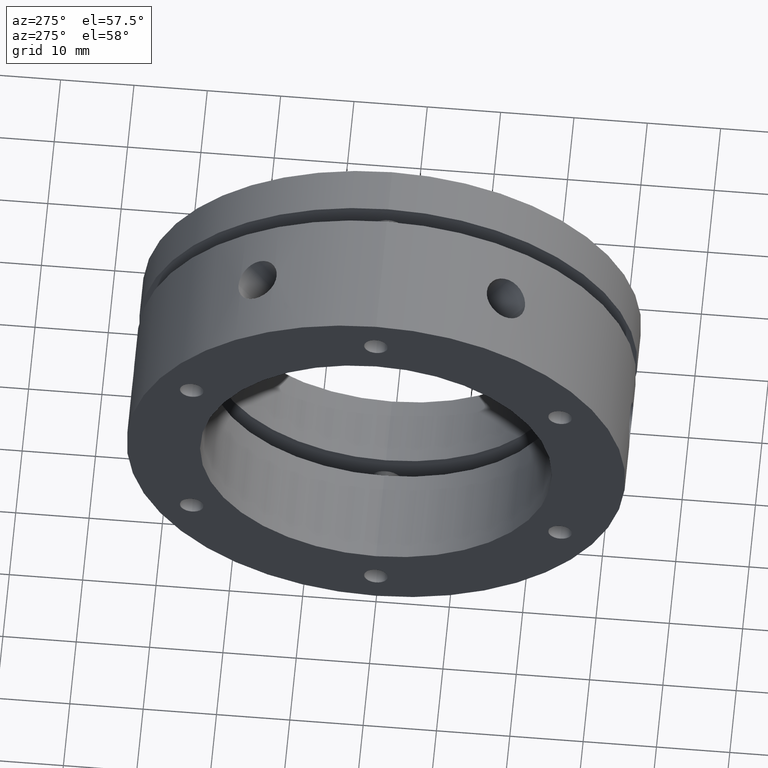
[diagram: clean part render]
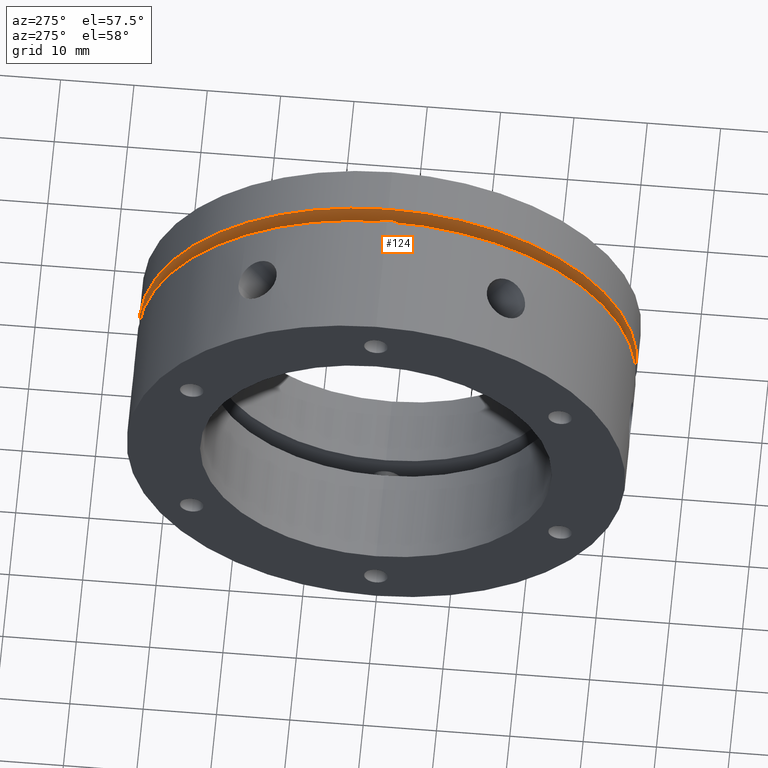
[diagram: same view with one face highlighted and labeled with its STEP entity id]
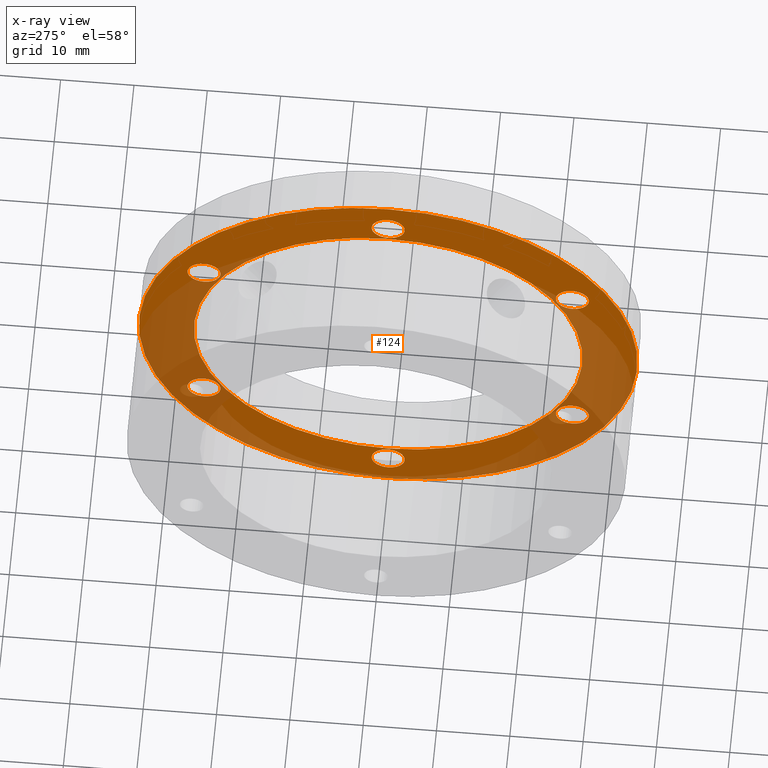
[diagram: x-ray of the same camera — body ghosted, the highlighted face saturated]
A machine part, auxiliary view. The second image highlights one B-rep face of the part: STEP entity #124.
The next image is the same camera in x-ray: the body ghosted, the highlighted face saturated — about 40% of this face is hidden behind the body in this view.
In plain terms, the highlighted planar face has unit normal (1, 0, 0).
Its self-contained STEP definition (entity closure, byte-faithful):
#124 = ADVANCED_FACE ( 'NONE', ( #2172, #2176, #2173, #2175, #2174, #2177, #2178, #2179 ), #446, .F. ) ;
#443 = DIRECTION ( 'NONE',  ( 1.000000000000000000, -0.0000000000000000000, 0.0000000000000000000 ) ) ;
#445 = CARTESIAN_POINT ( 'NONE',  ( 18.99999999999999600, 30.25000000000000400, 0.0000000000000000000 ) ) ;
#446 = PLANE ( 'NONE',  #2011 ) ;
#448 = DIRECTION ( 'NONE',  ( 0.0000000000000000000, 0.0000000000000000000, -1.000000000000000000 ) ) ;
#652 = CARTESIAN_POINT ( 'NONE',  ( 18.99999999999999600, 3.245314017740486900E-015, -26.50000000000000700 ) ) ;
#658 = CARTESIAN_POINT ( 'NONE',  ( 18.99999999999999600, 0.0000000000000000000, 26.50000000000000700 ) ) ;
#842 = ORIENTED_EDGE ( 'NONE', *, *, #1522, .F. ) ;
#843 = ORIENTED_EDGE ( 'NONE', *, *, #1565, .F. ) ;
#844 = ORIENTED_EDGE ( 'NONE', *, *, #1545, .F. ) ;
#845 = ORIENTED_EDGE ( 'NONE', *, *, #1556, .F. ) ;
#846 = ORIENTED_EDGE ( 'NONE', *, *, #2892, .F. ) ;
#847 = ORIENTED_EDGE ( 'NONE', *, *, #1555, .F. ) ;
#848 = ORIENTED_EDGE ( 'NONE', *, *, #2896, .F. ) ;
#849 = ORIENTED_EDGE ( 'NONE', *, *, #1450, .F. ) ;
#850 = ORIENTED_EDGE ( 'NONE', *, *, #2900, .F. ) ;
#851 = ORIENTED_EDGE ( 'NONE', *, *, #1449, .F. ) ;
#852 = ORIENTED_EDGE ( 'NONE', *, *, #2904, .F. ) ;
#853 = ORIENTED_EDGE ( 'NONE', *, *, #1448, .F. ) ;
#854 = ORIENTED_EDGE ( 'NONE', *, *, #2908, .F. ) ;
#856 = ORIENTED_EDGE ( 'NONE', *, *, #1447, .F. ) ;
#857 = ORIENTED_EDGE ( 'NONE', *, *, #2912, .F. ) ;
#859 = ORIENTED_EDGE ( 'NONE', *, *, #1446, .F. ) ;
#1218 = EDGE_LOOP ( 'NONE', ( #844, #845 ) ) ;
#1219 = EDGE_LOOP ( 'NONE', ( #850, #851 ) ) ;
#1220 = EDGE_LOOP ( 'NONE', ( #852, #853 ) ) ;
#1221 = EDGE_LOOP ( 'NONE', ( #842, #843 ) ) ;
#1222 = EDGE_LOOP ( 'NONE', ( #848, #849 ) ) ;
#1224 = EDGE_LOOP ( 'NONE', ( #846, #847 ) ) ;
#1225 = EDGE_LOOP ( 'NONE', ( #854, #856 ) ) ;
#1226 = EDGE_LOOP ( 'NONE', ( #857, #859 ) ) ;
#1344 = VERTEX_POINT ( 'NONE', #652 ) ;
#1350 = VERTEX_POINT ( 'NONE', #658 ) ;
#1446 = EDGE_CURVE ( 'NONE', #1661, #1658, #2388, .T. ) ;
#1447 = EDGE_CURVE ( 'NONE', #1657, #1654, #2390, .T. ) ;
#1448 = EDGE_CURVE ( 'NONE', #1653, #1650, #2389, .T. ) ;
#1449 = EDGE_CURVE ( 'NONE', #1649, #1646, #2391, .T. ) ;
#1450 = EDGE_CURVE ( 'NONE', #1645, #1642, #2392, .T. ) ;
#1522 = EDGE_CURVE ( 'NONE', #1350, #1344, #2495, .T. ) ;
#1545 = EDGE_CURVE ( 'NONE', #1634, #1635, #2530, .T. ) ;
#1555 = EDGE_CURVE ( 'NONE', #1641, #1638, #2542, .T. ) ;
#1556 = EDGE_CURVE ( 'NONE', #1635, #1634, #2545, .T. ) ;
#1565 = EDGE_CURVE ( 'NONE', #1344, #1350, #2555, .T. ) ;
#1634 = VERTEX_POINT ( 'NONE', #3616 ) ;
#1635 = VERTEX_POINT ( 'NONE', #3622 ) ;
#1638 = VERTEX_POINT ( 'NONE', #3593 ) ;
#1641 = VERTEX_POINT ( 'NONE', #3625 ) ;
#1642 = VERTEX_POINT ( 'NONE', #3626 ) ;
#1645 = VERTEX_POINT ( 'NONE', #3629 ) ;
#1646 = VERTEX_POINT ( 'NONE', #3630 ) ;
#1649 = VERTEX_POINT ( 'NONE', #3633 ) ;
#1650 = VERTEX_POINT ( 'NONE', #3634 ) ;
#1653 = VERTEX_POINT ( 'NONE', #3637 ) ;
#1654 = VERTEX_POINT ( 'NONE', #3638 ) ;
#1657 = VERTEX_POINT ( 'NONE', #3641 ) ;
#1658 = VERTEX_POINT ( 'NONE', #3642 ) ;
#1661 = VERTEX_POINT ( 'NONE', #3645 ) ;
#2011 = AXIS2_PLACEMENT_3D ( 'NONE', #445, #443, #448 ) ;
#2100 = AXIS2_PLACEMENT_3D ( 'NONE', #4370, #4371, #4372 ) ;
#2101 = AXIS2_PLACEMENT_3D ( 'NONE', #4373, #4374, #4375 ) ;
#2102 = AXIS2_PLACEMENT_3D ( 'NONE', #4376, #4377, #4378 ) ;
#2103 = AXIS2_PLACEMENT_3D ( 'NONE', #4379, #4380, #4381 ) ;
#2104 = AXIS2_PLACEMENT_3D ( 'NONE', #4384, #4385, #4386 ) ;
#2127 = AXIS2_PLACEMENT_3D ( 'NONE', #3243, #3244, #3245 ) ;
#2139 = AXIS2_PLACEMENT_3D ( 'NONE', #3299, #3300, #3301 ) ;
#2144 = AXIS2_PLACEMENT_3D ( 'NONE', #3322, #3323, #3324 ) ;
#2145 = AXIS2_PLACEMENT_3D ( 'NONE', #3325, #3326, #3327 ) ;
#2154 = AXIS2_PLACEMENT_3D ( 'NONE', #3352, #3353, #3354 ) ;
#2172 = FACE_BOUND ( 'NONE', #1221, .T. ) ;
#2173 = FACE_BOUND ( 'NONE', #1224, .T. ) ;
#2174 = FACE_BOUND ( 'NONE', #1219, .T. ) ;
#2175 = FACE_BOUND ( 'NONE', #1222, .T. ) ;
#2176 = FACE_BOUND ( 'NONE', #1218, .T. ) ;
#2177 = FACE_BOUND ( 'NONE', #1220, .T. ) ;
#2178 = FACE_BOUND ( 'NONE', #1225, .T. ) ;
#2179 = FACE_OUTER_BOUND ( 'NONE', #1226, .T. ) ;
#2388 = CIRCLE ( 'NONE', #2100, 34.00000000000000000 ) ;
#2389 = CIRCLE ( 'NONE', #2102, 2.250000000000000400 ) ;
#2390 = CIRCLE ( 'NONE', #2101, 2.250000000000000400 ) ;
#2391 = CIRCLE ( 'NONE', #2103, 2.250000000000001800 ) ;
#2392 = CIRCLE ( 'NONE', #2104, 2.249999999999998700 ) ;
#2495 = CIRCLE ( 'NONE', #2127, 26.50000000000000700 ) ;
#2530 = CIRCLE ( 'NONE', #2139, 2.249999999999998700 ) ;
#2542 = CIRCLE ( 'NONE', #2144, 2.250000000000000400 ) ;
#2545 = CIRCLE ( 'NONE', #2145, 2.249999999999998700 ) ;
#2555 = CIRCLE ( 'NONE', #2154, 26.50000000000000700 ) ;
#2645 = CIRCLE ( 'NONE', #4032, 2.250000000000000400 ) ;
#2647 = CIRCLE ( 'NONE', #4034, 2.249999999999998700 ) ;
#2653 = CIRCLE ( 'NONE', #4036, 2.250000000000001800 ) ;
#2659 = CIRCLE ( 'NONE', #4038, 2.250000000000000400 ) ;
#2665 = CIRCLE ( 'NONE', #4040, 2.250000000000000400 ) ;
#2671 = CIRCLE ( 'NONE', #4042, 34.00000000000000000 ) ;
#2892 = EDGE_CURVE ( 'NONE', #1638, #1641, #2645, .T. ) ;
#2896 = EDGE_CURVE ( 'NONE', #1642, #1645, #2647, .T. ) ;
#2900 = EDGE_CURVE ( 'NONE', #1646, #1649, #2653, .T. ) ;
#2904 = EDGE_CURVE ( 'NONE', #1650, #1653, #2659, .T. ) ;
#2908 = EDGE_CURVE ( 'NONE', #1654, #1657, #2665, .T. ) ;
#2912 = EDGE_CURVE ( 'NONE', #1658, #1661, #2671, .T. ) ;
#3243 = CARTESIAN_POINT ( 'NONE',  ( 18.99999999999999600, 0.0000000000000000000, 0.0000000000000000000 ) ) ;
#3244 = DIRECTION ( 'NONE',  ( -1.000000000000000000, 0.0000000000000000000, 0.0000000000000000000 ) ) ;
#3245 = DIRECTION ( 'NONE',  ( 0.0000000000000000000, 0.0000000000000000000, 1.000000000000000000 ) ) ;
#3299 = CARTESIAN_POINT ( 'NONE',  ( 18.99999999999999600, 0.0000000000000000000, 29.00000000000001400 ) ) ;
#3300 = DIRECTION ( 'NONE',  ( -1.000000000000000000, -0.0000000000000000000, -0.0000000000000000000 ) ) ;
#3301 = DIRECTION ( 'NONE',  ( 0.0000000000000000000, 0.0000000000000000000, -1.000000000000000000 ) ) ;
#3322 = CARTESIAN_POINT ( 'NONE',  ( 18.99999999999999600, -25.11473670974873000, 14.50000000000000900 ) ) ;
#3323 = DIRECTION ( 'NONE',  ( -1.000000000000000000, -0.0000000000000000000, -0.0000000000000000000 ) ) ;
#3324 = DIRECTION ( 'NONE',  ( 0.0000000000000000000, 0.0000000000000000000, -1.000000000000000000 ) ) ;
#3325 = CARTESIAN_POINT ( 'NONE',  ( 18.99999999999999600, 0.0000000000000000000, 29.00000000000001400 ) ) ;
#3326 = DIRECTION ( 'NONE',  ( -1.000000000000000000, -0.0000000000000000000, -0.0000000000000000000 ) ) ;
#3327 = DIRECTION ( 'NONE',  ( 0.0000000000000000000, 0.0000000000000000000, -1.000000000000000000 ) ) ;
#3352 = CARTESIAN_POINT ( 'NONE',  ( 18.99999999999999600, 0.0000000000000000000, 0.0000000000000000000 ) ) ;
#3353 = DIRECTION ( 'NONE',  ( -1.000000000000000000, 0.0000000000000000000, 0.0000000000000000000 ) ) ;
#3354 = DIRECTION ( 'NONE',  ( 0.0000000000000000000, 0.0000000000000000000, 1.000000000000000000 ) ) ;
#3593 = CARTESIAN_POINT ( 'NONE',  ( 18.99999999999999600, -25.11473670974873000, 12.25000000000000900 ) ) ;
#3616 = CARTESIAN_POINT ( 'NONE',  ( 18.99999999999999600, 0.0000000000000000000, 26.75000000000001800 ) ) ;
#3622 = CARTESIAN_POINT ( 'NONE',  ( 18.99999999999999600, 2.755455298081546700E-016, 31.25000000000001400 ) ) ;
#3625 = CARTESIAN_POINT ( 'NONE',  ( 18.99999999999999600, -25.11473670974873000, 16.75000000000000700 ) ) ;
#3626 = CARTESIAN_POINT ( 'NONE',  ( 18.99999999999999600, -25.11473670974873300, -16.75000000000000000 ) ) ;
#3629 = CARTESIAN_POINT ( 'NONE',  ( 18.99999999999999600, -25.11473670974873300, -12.25000000000000200 ) ) ;
#3630 = CARTESIAN_POINT ( 'NONE',  ( 18.99999999999999600, -4.440891999999999900E-015, -31.25000000000002100 ) ) ;
#3633 = CARTESIAN_POINT ( 'NONE',  ( 18.99999999999999600, -4.165346470191845000E-015, -26.75000000000001800 ) ) ;
#3634 = CARTESIAN_POINT ( 'NONE',  ( 18.99999999999999600, 25.11473670974872600, -16.75000000000001800 ) ) ;
#3637 = CARTESIAN_POINT ( 'NONE',  ( 18.99999999999999600, 25.11473670974872600, -12.25000000000001800 ) ) ;
#3638 = CARTESIAN_POINT ( 'NONE',  ( 18.99999999999999600, 25.11473670974874400, 12.24999999999998400 ) ) ;
#3641 = CARTESIAN_POINT ( 'NONE',  ( 18.99999999999999600, 25.11473670974874400, 16.74999999999998600 ) ) ;
#3642 = CARTESIAN_POINT ( 'NONE',  ( 18.99999999999999600, 0.0000000000000000000, -34.00000000000000000 ) ) ;
#3645 = CARTESIAN_POINT ( 'NONE',  ( 18.99999999999999600, 4.163799117101000600E-015, 34.00000000000000000 ) ) ;
#3730 = CARTESIAN_POINT ( 'NONE',  ( 18.99999999999999600, -25.11473670974873000, 14.50000000000000900 ) ) ;
#3731 = DIRECTION ( 'NONE',  ( -1.000000000000000000, -0.0000000000000000000, -0.0000000000000000000 ) ) ;
#3732 = DIRECTION ( 'NONE',  ( 0.0000000000000000000, 0.0000000000000000000, -1.000000000000000000 ) ) ;
#3740 = CARTESIAN_POINT ( 'NONE',  ( 18.99999999999999600, -25.11473670974873300, -14.50000000000000200 ) ) ;
#3741 = DIRECTION ( 'NONE',  ( -1.000000000000000000, -0.0000000000000000000, -0.0000000000000000000 ) ) ;
#3742 = DIRECTION ( 'NONE',  ( 0.0000000000000000000, 0.0000000000000000000, -1.000000000000000000 ) ) ;
#3750 = CARTESIAN_POINT ( 'NONE',  ( 18.99999999999999600, -4.440891999999999900E-015, -29.00000000000001800 ) ) ;
#3751 = DIRECTION ( 'NONE',  ( -1.000000000000000000, -0.0000000000000000000, -0.0000000000000000000 ) ) ;
#3752 = DIRECTION ( 'NONE',  ( 0.0000000000000000000, 0.0000000000000000000, -1.000000000000000000 ) ) ;
#3760 = CARTESIAN_POINT ( 'NONE',  ( 18.99999999999999600, 25.11473670974872600, -14.50000000000001800 ) ) ;
#3761 = DIRECTION ( 'NONE',  ( -1.000000000000000000, -0.0000000000000000000, -0.0000000000000000000 ) ) ;
#3762 = DIRECTION ( 'NONE',  ( 0.0000000000000000000, 0.0000000000000000000, -1.000000000000000000 ) ) ;
#3770 = CARTESIAN_POINT ( 'NONE',  ( 18.99999999999999600, 25.11473670974874400, 14.49999999999998600 ) ) ;
#3771 = DIRECTION ( 'NONE',  ( -1.000000000000000000, -0.0000000000000000000, -0.0000000000000000000 ) ) ;
#3772 = DIRECTION ( 'NONE',  ( 0.0000000000000000000, 0.0000000000000000000, -1.000000000000000000 ) ) ;
#3780 = CARTESIAN_POINT ( 'NONE',  ( 18.99999999999999600, 0.0000000000000000000, 0.0000000000000000000 ) ) ;
#3781 = DIRECTION ( 'NONE',  ( 1.000000000000000000, 0.0000000000000000000, 0.0000000000000000000 ) ) ;
#3782 = DIRECTION ( 'NONE',  ( 0.0000000000000000000, 0.0000000000000000000, -1.000000000000000000 ) ) ;
#4032 = AXIS2_PLACEMENT_3D ( 'NONE', #3730, #3731, #3732 ) ;
#4034 = AXIS2_PLACEMENT_3D ( 'NONE', #3740, #3741, #3742 ) ;
#4036 = AXIS2_PLACEMENT_3D ( 'NONE', #3750, #3751, #3752 ) ;
#4038 = AXIS2_PLACEMENT_3D ( 'NONE', #3760, #3761, #3762 ) ;
#4040 = AXIS2_PLACEMENT_3D ( 'NONE', #3770, #3771, #3772 ) ;
#4042 = AXIS2_PLACEMENT_3D ( 'NONE', #3780, #3781, #3782 ) ;
#4370 = CARTESIAN_POINT ( 'NONE',  ( 18.99999999999999600, 0.0000000000000000000, 0.0000000000000000000 ) ) ;
#4371 = DIRECTION ( 'NONE',  ( 1.000000000000000000, 0.0000000000000000000, 0.0000000000000000000 ) ) ;
#4372 = DIRECTION ( 'NONE',  ( 0.0000000000000000000, 0.0000000000000000000, -1.000000000000000000 ) ) ;
#4373 = CARTESIAN_POINT ( 'NONE',  ( 18.99999999999999600, 25.11473670974874400, 14.49999999999998600 ) ) ;
#4374 = DIRECTION ( 'NONE',  ( -1.000000000000000000, -0.0000000000000000000, -0.0000000000000000000 ) ) ;
#4375 = DIRECTION ( 'NONE',  ( 0.0000000000000000000, 0.0000000000000000000, -1.000000000000000000 ) ) ;
#4376 = CARTESIAN_POINT ( 'NONE',  ( 18.99999999999999600, 25.11473670974872600, -14.50000000000001800 ) ) ;
#4377 = DIRECTION ( 'NONE',  ( -1.000000000000000000, -0.0000000000000000000, -0.0000000000000000000 ) ) ;
#4378 = DIRECTION ( 'NONE',  ( 0.0000000000000000000, 0.0000000000000000000, -1.000000000000000000 ) ) ;
#4379 = CARTESIAN_POINT ( 'NONE',  ( 18.99999999999999600, -4.440891999999999900E-015, -29.00000000000001800 ) ) ;
#4380 = DIRECTION ( 'NONE',  ( -1.000000000000000000, -0.0000000000000000000, -0.0000000000000000000 ) ) ;
#4381 = DIRECTION ( 'NONE',  ( 0.0000000000000000000, 0.0000000000000000000, -1.000000000000000000 ) ) ;
#4384 = CARTESIAN_POINT ( 'NONE',  ( 18.99999999999999600, -25.11473670974873300, -14.50000000000000200 ) ) ;
#4385 = DIRECTION ( 'NONE',  ( -1.000000000000000000, -0.0000000000000000000, -0.0000000000000000000 ) ) ;
#4386 = DIRECTION ( 'NONE',  ( 0.0000000000000000000, 0.0000000000000000000, -1.000000000000000000 ) ) ;